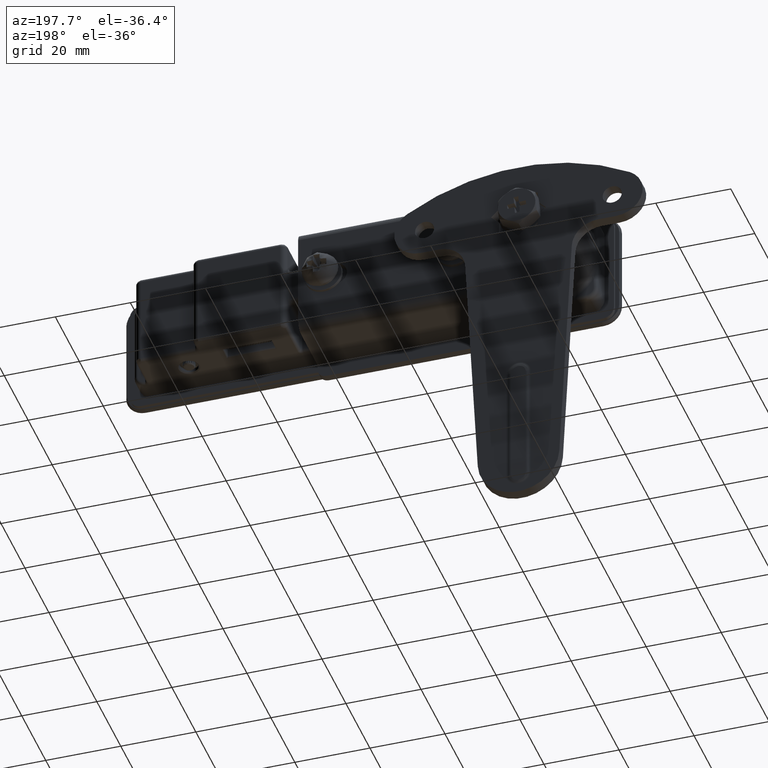
[diagram: clean part render]
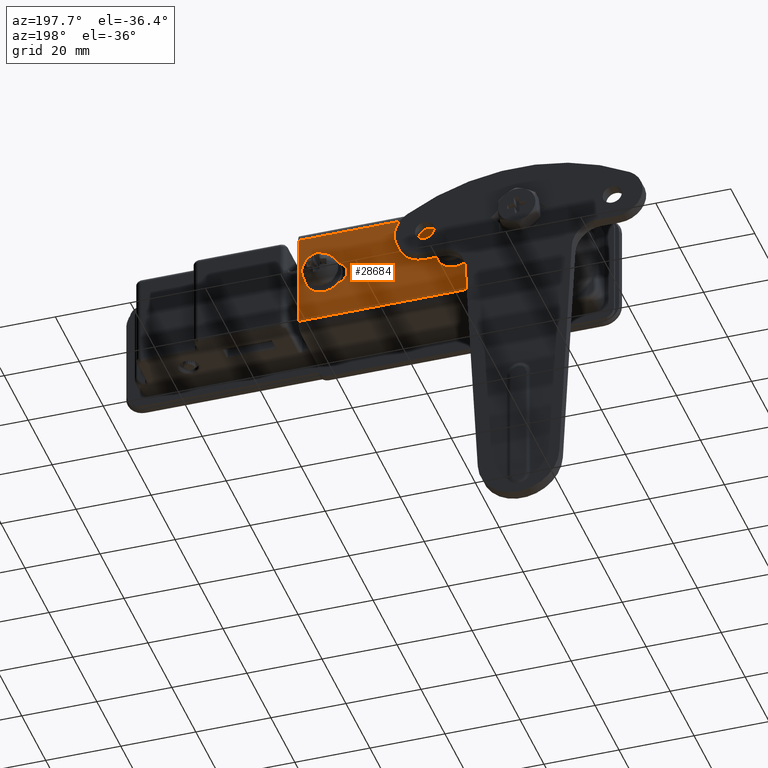
[diagram: same view with one face highlighted and labeled with its STEP entity id]
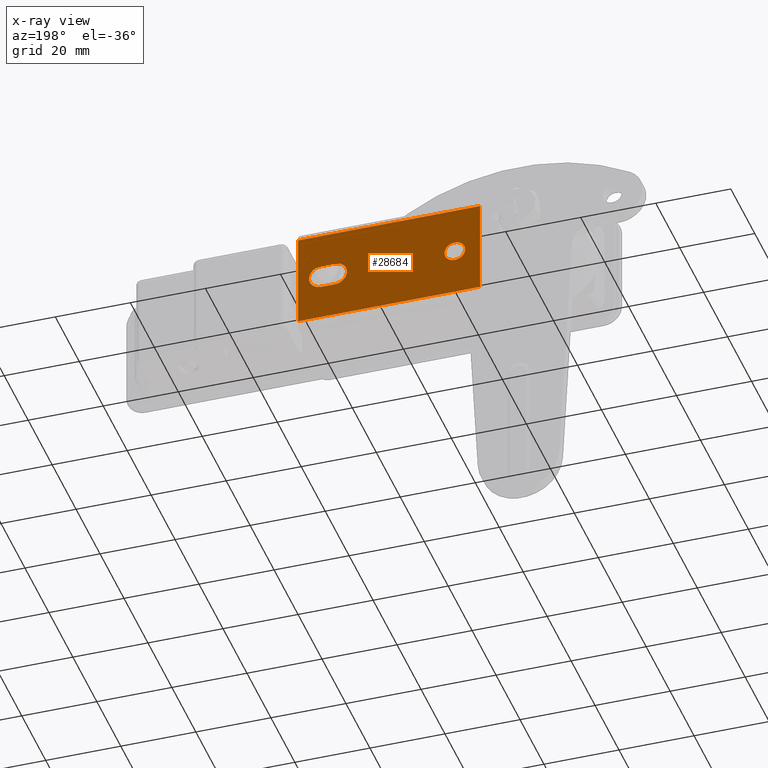
[diagram: x-ray of the same camera — body ghosted, the highlighted face saturated]
A machine part, auxiliary view. The second image highlights one B-rep face of the part: STEP entity #28684.
The next image is the same camera in x-ray: the body ghosted, the highlighted face saturated — about 0% of this face is hidden behind the body in this view.
In plain terms, the highlighted planar face has unit normal (0, 1, 0).
Its self-contained STEP definition (entity closure, byte-faithful):
#560=FACE_BOUND('',#6124,.T.);
#561=FACE_BOUND('',#6125,.T.);
#1947=CIRCLE('',#31200,3.25);
#1949=CIRCLE('',#31204,3.25);
#1970=CIRCLE('',#31235,2.75);
#4286=FACE_OUTER_BOUND('',#6123,.T.);
#6123=EDGE_LOOP('',(#24618,#24619,#24620,#24621));
#6124=EDGE_LOOP('',(#24622,#24623,#24624,#24625));
#6125=EDGE_LOOP('',(#24626));
#8932=LINE('',#92083,#10977);
#8936=LINE('',#92095,#10981);
#8941=LINE('',#92113,#10986);
#8966=LINE('',#92194,#11011);
#8970=LINE('',#92205,#11015);
#8971=LINE('',#92207,#11016);
#10977=VECTOR('',#37805,3.6);
#10981=VECTOR('',#37817,3.6);
#10986=VECTOR('',#37834,25.5);
#11011=VECTOR('',#37901,25.5);
#11015=VECTOR('',#37915,48.5);
#11016=VECTOR('',#37918,48.5);
#13355=VERTEX_POINT('',#92080);
#13356=VERTEX_POINT('',#92082);
#13358=VERTEX_POINT('',#92088);
#13360=VERTEX_POINT('',#92094);
#13366=VERTEX_POINT('',#92110);
#13367=VERTEX_POINT('',#92112);
#13401=VERTEX_POINT('',#92191);
#13402=VERTEX_POINT('',#92193);
#13405=VERTEX_POINT('',#92208);
#17192=EDGE_CURVE('',#13356,#13355,#8932,.T.);
#17195=EDGE_CURVE('',#13358,#13356,#1947,.T.);
#17198=EDGE_CURVE('',#13360,#13358,#8936,.T.);
#17201=EDGE_CURVE('',#13355,#13360,#1949,.T.);
#17207=EDGE_CURVE('',#13367,#13366,#8941,.T.);
#17248=EDGE_CURVE('',#13401,#13402,#8966,.T.);
#17254=EDGE_CURVE('',#13402,#13366,#8970,.T.);
#17255=EDGE_CURVE('',#13401,#13367,#8971,.T.);
#17256=EDGE_CURVE('',#13405,#13405,#1970,.T.);
#24618=ORIENTED_EDGE('',*,*,#17254,.F.);
#24619=ORIENTED_EDGE('',*,*,#17248,.F.);
#24620=ORIENTED_EDGE('',*,*,#17255,.T.);
#24621=ORIENTED_EDGE('',*,*,#17207,.T.);
#24622=ORIENTED_EDGE('',*,*,#17198,.T.);
#24623=ORIENTED_EDGE('',*,*,#17195,.T.);
#24624=ORIENTED_EDGE('',*,*,#17192,.T.);
#24625=ORIENTED_EDGE('',*,*,#17201,.T.);
#24626=ORIENTED_EDGE('',*,*,#17256,.F.);
#27189=PLANE('',#31234);
#28684=ADVANCED_FACE('',(#4286,#560,#561),#27189,.T.);
#31200=AXIS2_PLACEMENT_3D('',#92089,#37811,#37812);
#31204=AXIS2_PLACEMENT_3D('',#92099,#37823,#37824);
#31234=AXIS2_PLACEMENT_3D('',#92206,#37916,#37917);
#31235=AXIS2_PLACEMENT_3D('',#92209,#37919,#37920);
#37805=DIRECTION('',(0.,-1.,0.));
#37811=DIRECTION('center_axis',(0.,0.,1.));
#37812=DIRECTION('ref_axis',(-1.,0.,0.));
#37817=DIRECTION('',(0.,1.,0.));
#37823=DIRECTION('center_axis',(0.,0.,1.));
#37824=DIRECTION('ref_axis',(1.,0.,0.));
#37834=DIRECTION('',(-1.,0.,0.));
#37901=DIRECTION('',(-1.,0.,0.));
#37915=DIRECTION('',(0.,-1.,0.));
#37916=DIRECTION('center_axis',(0.,0.,-1.));
#37917=DIRECTION('ref_axis',(-1.,0.,0.));
#37918=DIRECTION('',(0.,-1.,0.));
#37919=DIRECTION('center_axis',(0.,0.,-1.));
#37920=DIRECTION('ref_axis',(1.,0.,0.));
#92080=CARTESIAN_POINT('',(-3.25,-18.1,-18.));
#92082=CARTESIAN_POINT('',(-3.25,-14.5,-18.));
#92083=CARTESIAN_POINT('',(-3.25,-19.375,-18.));
#92088=CARTESIAN_POINT('',(3.25,-14.5,-18.));
#92089=CARTESIAN_POINT('Origin',(0.,-14.5,-18.));
#92094=CARTESIAN_POINT('',(3.25,-18.1,-18.));
#92095=CARTESIAN_POINT('',(3.25,-21.175,-18.));
#92099=CARTESIAN_POINT('Origin',(0.,-18.1,-18.));
#92110=CARTESIAN_POINT('',(-12.75,-24.25,-18.));
#92112=CARTESIAN_POINT('',(12.75,-24.25,-18.));
#92113=CARTESIAN_POINT('',(12.75,-24.25,-18.));
#92191=CARTESIAN_POINT('',(12.75,24.25,-18.));
#92193=CARTESIAN_POINT('',(-12.75,24.25,-18.));
#92194=CARTESIAN_POINT('',(12.75,24.25,-18.));
#92205=CARTESIAN_POINT('',(-12.75,24.25,-18.));
#92206=CARTESIAN_POINT('Origin',(15.25,-24.25,-18.));
#92207=CARTESIAN_POINT('',(12.75,24.25,-18.));
#92208=CARTESIAN_POINT('',(-2.75,17.5,-18.));
#92209=CARTESIAN_POINT('Origin',(0.,17.5,-18.));